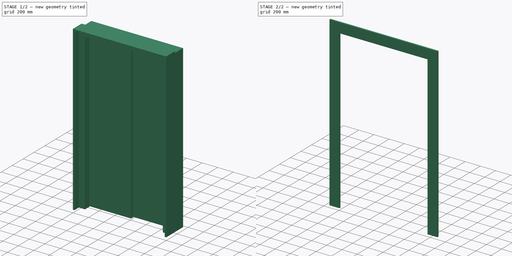
[diagram: build sequence overview — one tinted view per stage of 2, left to right]
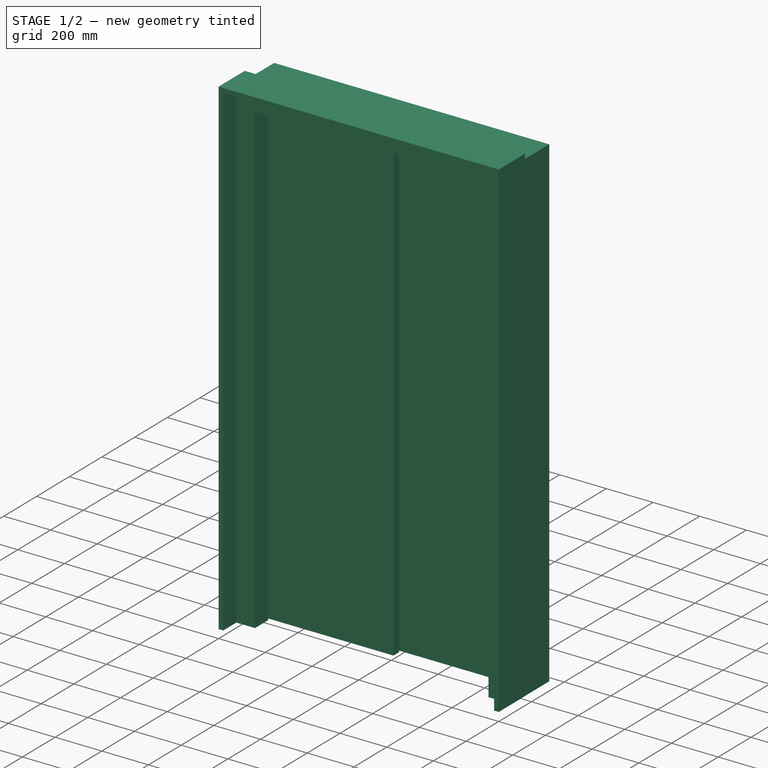
[diagram: stage 1 of 2 — iso view after this stage's code; geometry added in this stage tinted green]
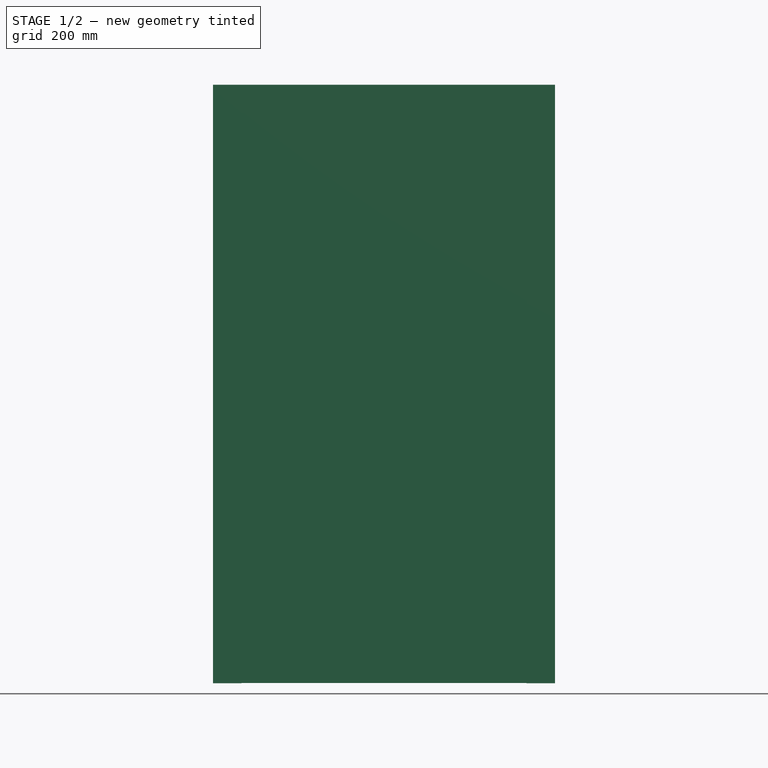
[diagram: stage 1 of 2 — front view after this stage's code; geometry added in this stage tinted green]
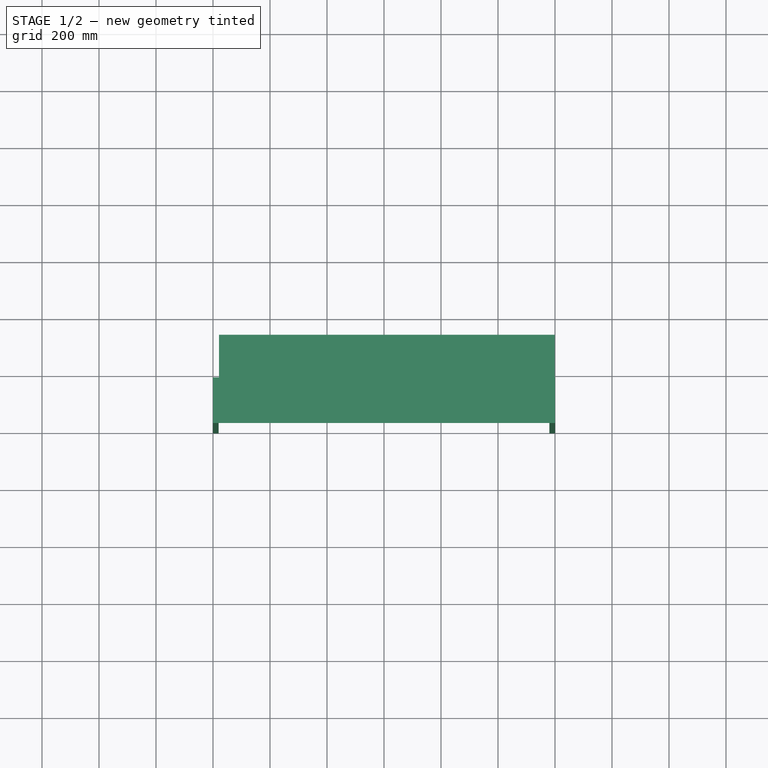
[diagram: stage 1 of 2 — top view after this stage's code; geometry added in this stage tinted green]
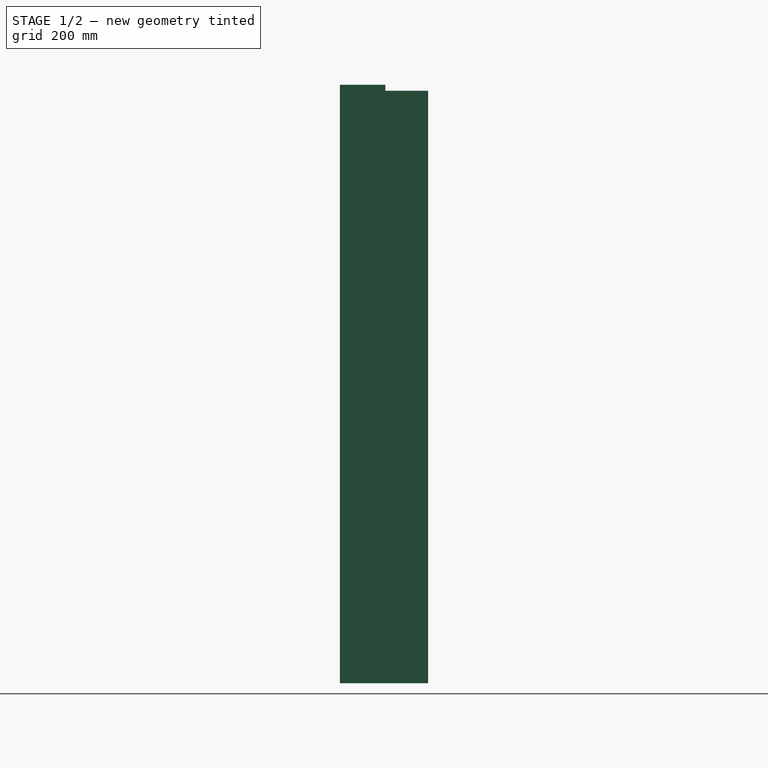
[diagram: stage 1 of 2 — right view after this stage's code; geometry added in this stage tinted green]
FCSTD DOCUMENT  (FreeCAD 0.16R6704 (Git))
Label: Elevator doors with trims
License: CreativeCommons Attribution
LicenseURL: http://creativecommons.org/licenses/by/4.0/
objects: Sketcher::SketchObject×2, Part::FeaturePython×1, Part::Extrusion×1, App::DocumentObjectGroup×1
note: 4 computed .brp shape members not serialized (recipe doc carries the construction recipe); baked Part::Feature solids carry a one-line shape summary decoded from their .brp

FEATURE [Sketcher::SketchObject] Sketch208
  Placement = pos=(0,0,0) rot=(1,0,0;1.5708rad)
  sketch-geometry (33):
    g0: LineSegment StartX=0 StartY=0 StartZ=0 EndX=1200 EndY=0 EndZ=0
    g1: LineSegment StartX=1200 StartY=0 StartZ=0 EndX=1200 EndY=2100 EndZ=0
    g2: LineSegment StartX=1200 StartY=2100 StartZ=0 EndX=0 EndY=2100 EndZ=0
    g3: LineSegment StartX=0 StartY=2100 StartZ=0 EndX=0 EndY=0 EndZ=0
    g4: LineSegment StartX=20 StartY=0 StartZ=0 EndX=1180 EndY=0 EndZ=0
    g5: LineSegment StartX=1180 StartY=0 StartZ=0 EndX=1180 EndY=2080 EndZ=0
    g6: LineSegment StartX=1180 StartY=2080 StartZ=0 EndX=20 EndY=2080 EndZ=0
    g7: LineSegment StartX=20 StartY=2080 StartZ=0 EndX=20 EndY=0 EndZ=0
    g8: LineSegment [constr] StartX=0 StartY=187 StartZ=0 EndX=20 EndY=187 EndZ=0
    g9: LineSegment [constr] StartX=48.0913 StartY=2080 StartZ=0 EndX=48.0913 EndY=2100 EndZ=0
    g10: LineSegment [constr] StartX=1180 StartY=201.063 StartZ=0 EndX=1200 EndY=201.063 EndZ=0
    g11: LineSegment StartX=100 StartY=0 StartZ=0 EndX=1100 EndY=0 EndZ=0
    g12: LineSegment StartX=1100 StartY=0 StartZ=0 EndX=1100 EndY=2000 EndZ=0
    g13: LineSegment StartX=1100 StartY=2000 StartZ=0 EndX=100 EndY=2000 EndZ=0
    g14: LineSegment StartX=100 StartY=2000 StartZ=0 EndX=100 EndY=0 EndZ=0
    g15: LineSegment [constr] StartX=0 StartY=83.4967 StartZ=0 EndX=100 EndY=83.4967 EndZ=0
    g16: LineSegment [constr] StartX=227.743 StartY=2000 StartZ=0 EndX=227.743 EndY=2100 EndZ=0
    g17: LineSegment [constr] StartX=1100 StartY=97.2437 StartZ=0 EndX=1200 EndY=97.2437 EndZ=0
    g18: LineSegment StartX=78 StartY=2005 StartZ=0 EndX=630 EndY=2005 EndZ=0
    g19: LineSegment StartX=630 StartY=2005 StartZ=0 EndX=630 EndY=1 EndZ=0
    g20: LineSegment StartX=630 StartY=1 StartZ=0 EndX=78 EndY=1 EndZ=0
    g21: LineSegment StartX=78 StartY=1 StartZ=0 EndX=78 EndY=2005 EndZ=0
    g22: LineSegment StartX=570 StartY=2005 StartZ=0 EndX=1122 EndY=2005 EndZ=0
    g23: LineSegment StartX=1122 StartY=2005 StartZ=0 EndX=1122 EndY=1 EndZ=0
    g24: LineSegment StartX=1122 StartY=1 StartZ=0 EndX=570 EndY=1 EndZ=0
    g25: LineSegment StartX=570 StartY=1 StartZ=0 EndX=570 EndY=2005 EndZ=0
    g26: LineSegment [constr] StartX=600 StartY=2830.44 StartZ=0 EndX=600 EndY=-741.689 EndZ=0
    g27: LineSegment StartX=1123 StartY=0 StartZ=0 EndX=1123 EndY=2006 EndZ=0
    g28: LineSegment StartX=1123 StartY=2006 StartZ=0 EndX=21 EndY=2006 EndZ=0
    g29: LineSegment StartX=21 StartY=2006 StartZ=0 EndX=21 EndY=2079 EndZ=0
    g30: LineSegment StartX=21 StartY=2079 StartZ=0 EndX=1199 EndY=2079 EndZ=0
    g31: LineSegment StartX=1199 StartY=2079 StartZ=0 EndX=1199 EndY=0 EndZ=0
    g32: LineSegment StartX=1199 StartY=0 StartZ=0 EndX=1123 EndY=0 EndZ=0
  constraints (97):
    c: Coincident(g0,g1)
    c: Coincident(g1,g2)
    c: Coincident(g2,g3)
    c: Coincident(g3,g0)
    c: Horizontal(g0)
    c: Horizontal(g2)
    c: Vertical(g1)
    c: Vertical(g3)
    c: PointOnObject(g0,g-1)
    c: DistanceX(g-1,g0) = 1200  'Largura do vão'
    c: DistanceY(g-1,g2) = 2100  'Altura do vão'
    c: Coincident(g4,g5)
    c: Coincident(g5,g6)
    c: Coincident(g6,g7)
    c: Coincident(g7,g4)
    c: Horizontal(g4)
    c: Horizontal(g6)
    c: Vertical(g5)
    c: Vertical(g7)
    c: PointOnObject(g4,g0)
    c: DistanceX(g0,g4) = 20  'Batentes1'
    c: PointOnObject(g8,g3)
    c: PointOnObject(g8,g7)
    c: PointOnObject(g9,g6)
    c: PointOnObject(g9,g2)
    c: PointOnObject(g10,g5)
    c: PointOnObject(g10,g1)
    c: Angle(g8) = 0
    c: Angle(g9) = 1.5708
    c: Angle(g10) = 0
    c: Equal(g8,g9)
    c: Equal(g9,g10)
    c: Coincident(g0,g-1)
    c: Coincident(g11,g12)
    c: Coincident(g12,g13)
    c: Coincident(g13,g14)
    c: Coincident(g14,g11)
    c: Horizontal(g11)
    c: Horizontal(g13)
    c: Vertical(g12)
    c: Vertical(g14)
    c: PointOnObject(g11,g0)
    c: DistanceX(g-1,g11) = 100  'Batentes 2'
    c: PointOnObject(g15,g3)
    c: PointOnObject(g15,g14)
    c: PointOnObject(g16,g13)
    c: PointOnObject(g16,g2)
    c: PointOnObject(g17,g12)
    c: PointOnObject(g17,g1)
    c: Equal(g15,g16)
    c: Equal(g16,g17)
    c: Angle(g15) = 0
    c: Angle(g17) = 0
    c: Angle(g16) = 1.5708
    c: Coincident(g18,g19)
    c: Coincident(g19,g20)
    c: Coincident(g20,g21)
    c: Coincident(g21,g18)
    c: Horizontal(g18)
    c: Horizontal(g20)
    c: Vertical(g19)
    c: Vertical(g21)
    c: Coincident(g22,g23)
    c: Coincident(g23,g24)
    c: Coincident(g24,g25)
    c: Coincident(g25,g22)
    c: Horizontal(g22)
    c: Horizontal(g24)
    c: Vertical(g23)
    c: Vertical(g25)
    c: Symmetric(g2,g1,g26)
    c: DistanceY(g-1,g20) = 1
    c: DistanceY(g19,g24) = 0
    c: DistanceY(g22,g18) = 0
    c: DistanceX(g18,g13) = 22
    c: DistanceY(g13,g18) = 5
    c: DistanceX(g12,g22) = 22
    c: Symmetric(g22,g18,g26)
    c: DistanceX(g22,g26) = 30
    c: PointOnObject(g27,g0)
    c: Vertical(g27)
    c: Coincident(g27,g28)
    c: Horizontal(g28)
    c: Coincident(g28,g29)
    c: Vertical(g29)
    c: Coincident(g29,g30)
    c: Horizontal(g30)
    c: Coincident(g30,g31)
    c: PointOnObject(g31,g0)
    c: Vertical(g31)
    c: Coincident(g31,g32)
    c: Coincident(g32,g27)
    c: DistanceX(g11,g27) = 23
    c: DistanceX(g31,g0) = 1
    c: DistanceY(g30,g5) = 1
    c: DistanceX(g6,g29) = 1
    c: DistanceY(g13,g28) = 6
FEATURE [Part::FeaturePython] Window124  label="Elevator doors"  # WARN: FeaturePython — macro-defined, semantics opaque (R4)
  Base = -> Sketch208
  Height = 0
  HoleDepth = 0
  MoveWithHost = true
  Normal = (0,1,0)
  Preset = 0
  Role = 1
  Width = 0
  WindowParts = BATENTES 1 | Frame | Wire0,Wire1 | 80.0 | 0 | BANTENTES 2 | Frame | Wire0,Wire2 | 80.0 | 80.0 | PORTA 1 | Solid panel | Wire3 | 35.0 | 170 | PORTA 2 | Frame | Wire4 | 35.0 | 215 | BATENTES 3 | Frame | Wire5 | 150.0 | 160.0
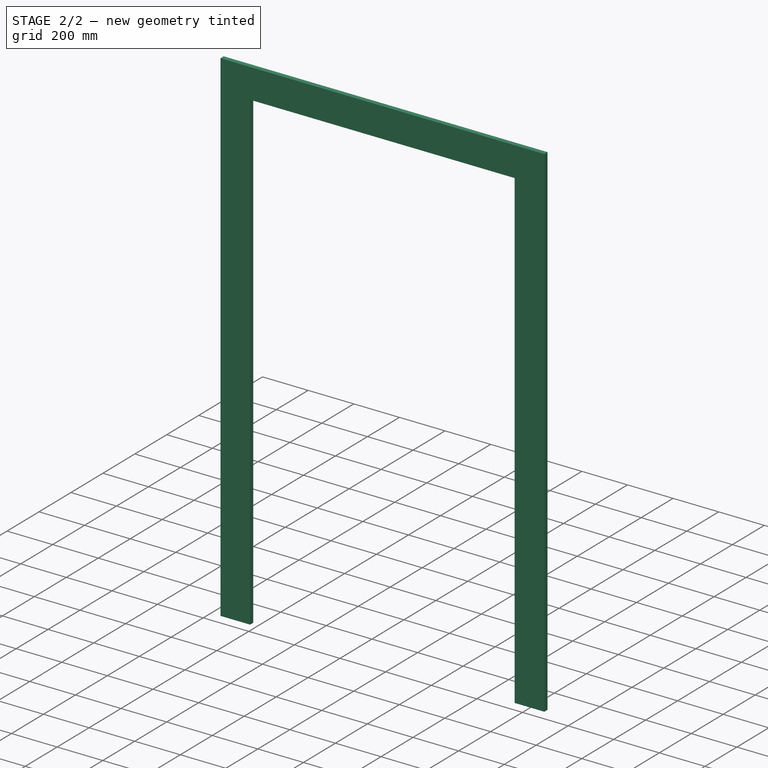
[diagram: stage 2 of 2 — iso view after this stage's code; geometry added in this stage tinted green]
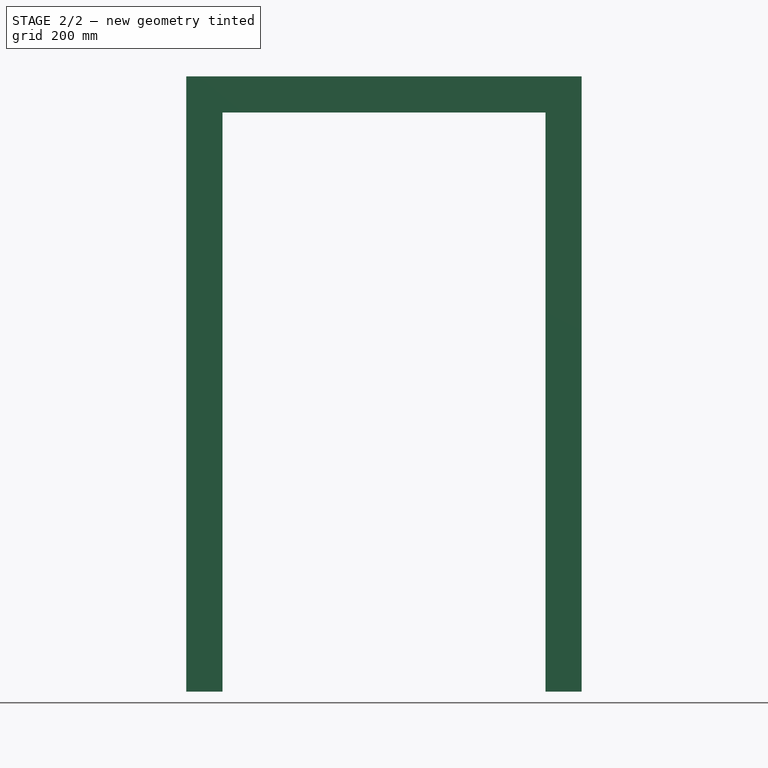
[diagram: stage 2 of 2 — front view after this stage's code; geometry added in this stage tinted green]
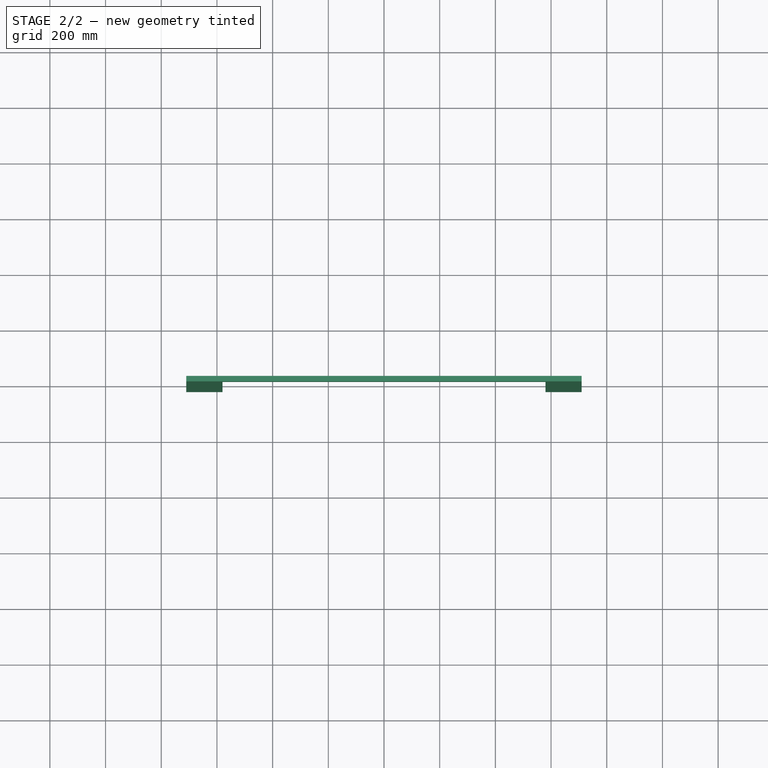
[diagram: stage 2 of 2 — top view after this stage's code; geometry added in this stage tinted green]
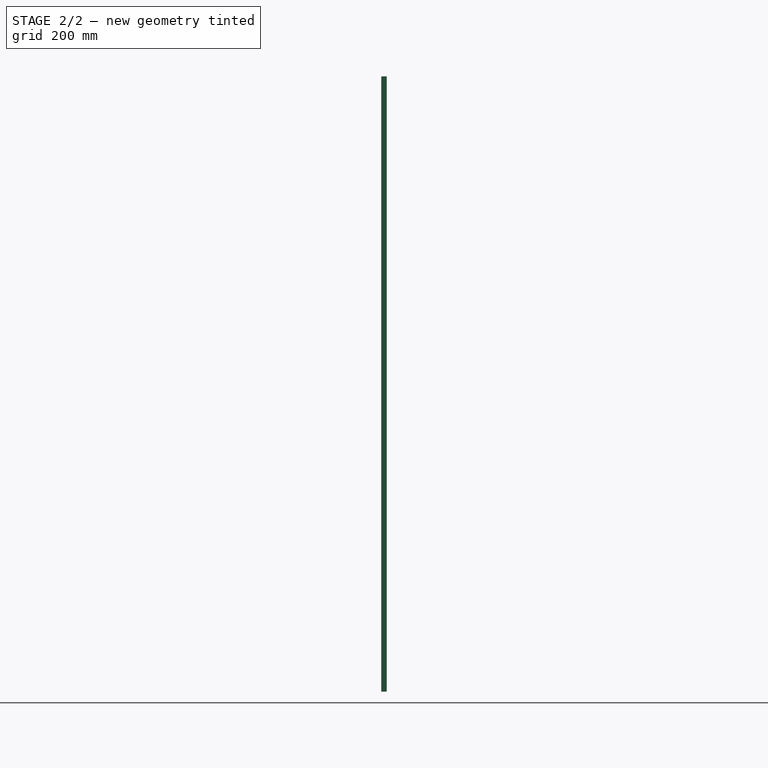
[diagram: stage 2 of 2 — right view after this stage's code; geometry added in this stage tinted green]
FEATURE [Sketcher::SketchObject] Sketch001  label="Sketch"
  ExternalGeometry = -> [Window124]
  Placement = pos=(0,0,0) rot=(1,0,0;1.5708rad)
  Support = -> Window124 [Face2]
  sketch-geometry (11):
    g0: LineSegment StartX=20 StartY=0 StartZ=0 EndX=-110 EndY=0 EndZ=0
    g1: LineSegment StartX=-110 StartY=0 StartZ=0 EndX=-110 EndY=2210 EndZ=0
    g2: LineSegment StartX=-110 StartY=2210 StartZ=0 EndX=1310 EndY=2210 EndZ=0
    g3: LineSegment StartX=1310 StartY=2210 StartZ=0 EndX=1310 EndY=0 EndZ=0
    g4: LineSegment StartX=1310 StartY=0 StartZ=0 EndX=1180 EndY=0 EndZ=0
    g5: LineSegment StartX=1180 StartY=0 StartZ=0 EndX=1180 EndY=2080 EndZ=0
    g6: LineSegment StartX=1180 StartY=2080 StartZ=0 EndX=20 EndY=2080 EndZ=0
    g7: LineSegment StartX=20 StartY=2080 StartZ=0 EndX=20 EndY=0 EndZ=0
    g8: LineSegment [constr] StartX=-110 StartY=1976 StartZ=0 EndX=20 EndY=1976 EndZ=0
    g9: LineSegment [constr] StartX=274 StartY=2080 StartZ=0 EndX=274 EndY=2210 EndZ=0
    g10: LineSegment [constr] StartX=1180 StartY=1780.8 StartZ=0 EndX=1310 EndY=1780.8 EndZ=0
  constraints (30):
    c: Coincident(g-3,g0)
    c: Horizontal(g0)
    c: Coincident(g0,g1)
    c: Vertical(g1)
    c: Coincident(g1,g2)
    c: Horizontal(g2)
    c: Coincident(g2,g3)
    c: Vertical(g3)
    c: Coincident(g3,g4)
    c: Coincident(g4,g-5)
    c: Horizontal(g4)
    c: Coincident(g4,g5)
    c: Vertical(g5)
    c: Coincident(g5,g6)
    c: Coincident(g6,g-4)
    c: Horizontal(g6)
    c: Coincident(g6,g7)
    c: Coincident(g7,g0)
    c: DistanceX(g1,g6) = 130  'Largura guarnições'
    c: PointOnObject(g8,g1)
    c: PointOnObject(g8,g-3)
    c: PointOnObject(g9,g-4)
    c: PointOnObject(g9,g2)
    c: PointOnObject(g10,g-5)
    c: PointOnObject(g10,g3)
    c: Equal(g8,g9)
    c: Equal(g9,g10)
    c: Angle(g8) = 0
    c: Angle(g9) = 1.5708
    c: Angle(g10) = 0
FEATURE [Part::Extrusion] Extrude_Sketch001  label="Trims"
  Base = -> Sketch001
  Dir = (0,-20,0)
  Solid = true
FEATURE [App::DocumentObjectGroup] Grupo001  label="Elevator doors with trims "
  Group = -> [Window124,Extrude_Sketch001]
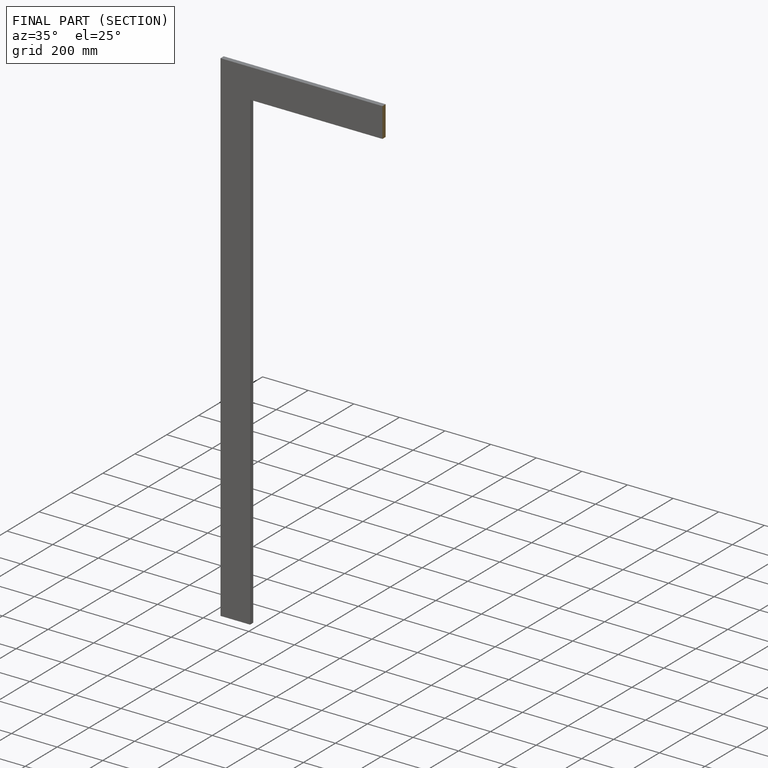
[diagram: finished part — half-section view (interior)]
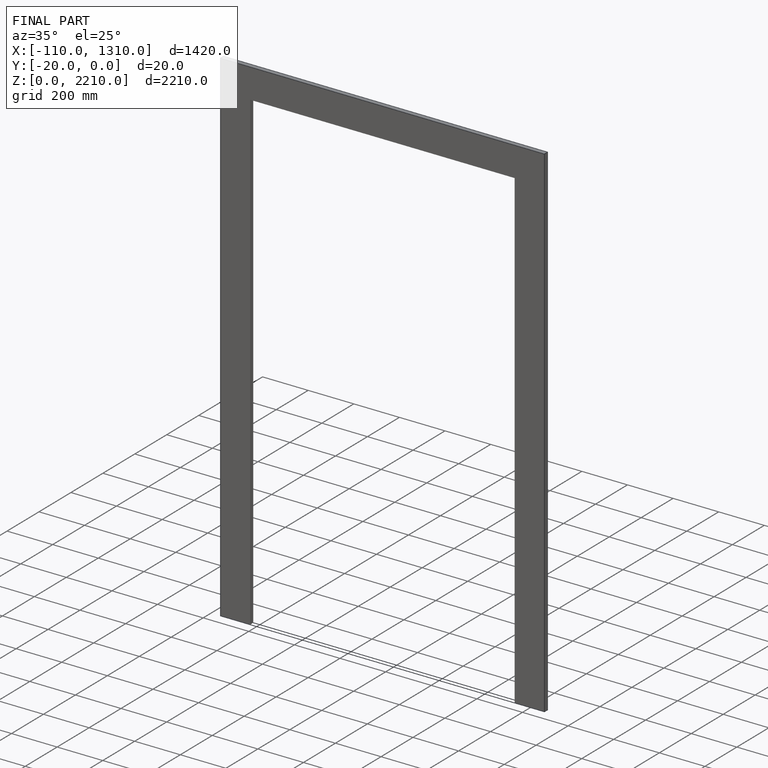
[diagram: finished part — iso view with bounding-box wireframe]
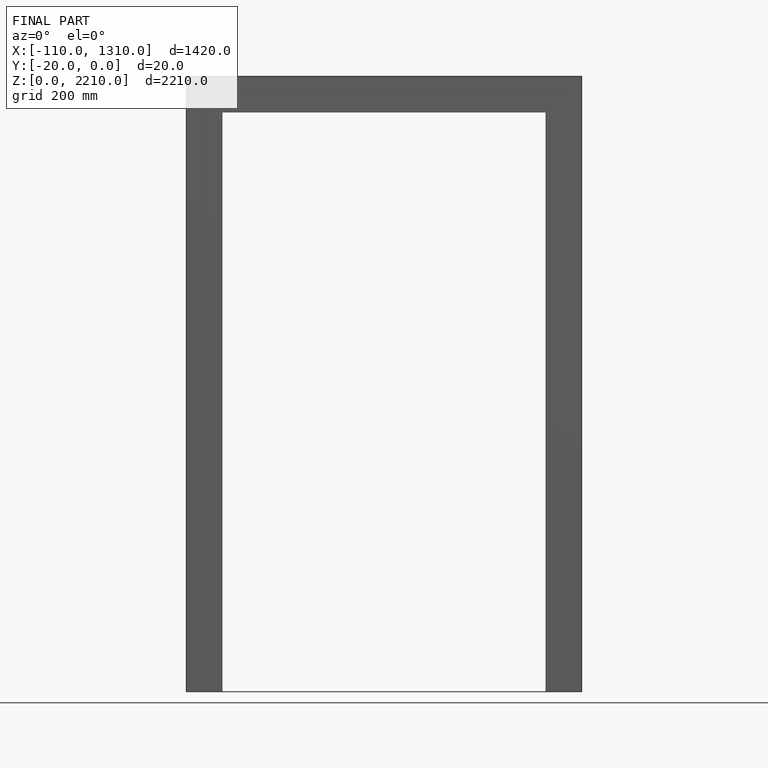
[diagram: finished part — front view with bounding-box wireframe]
